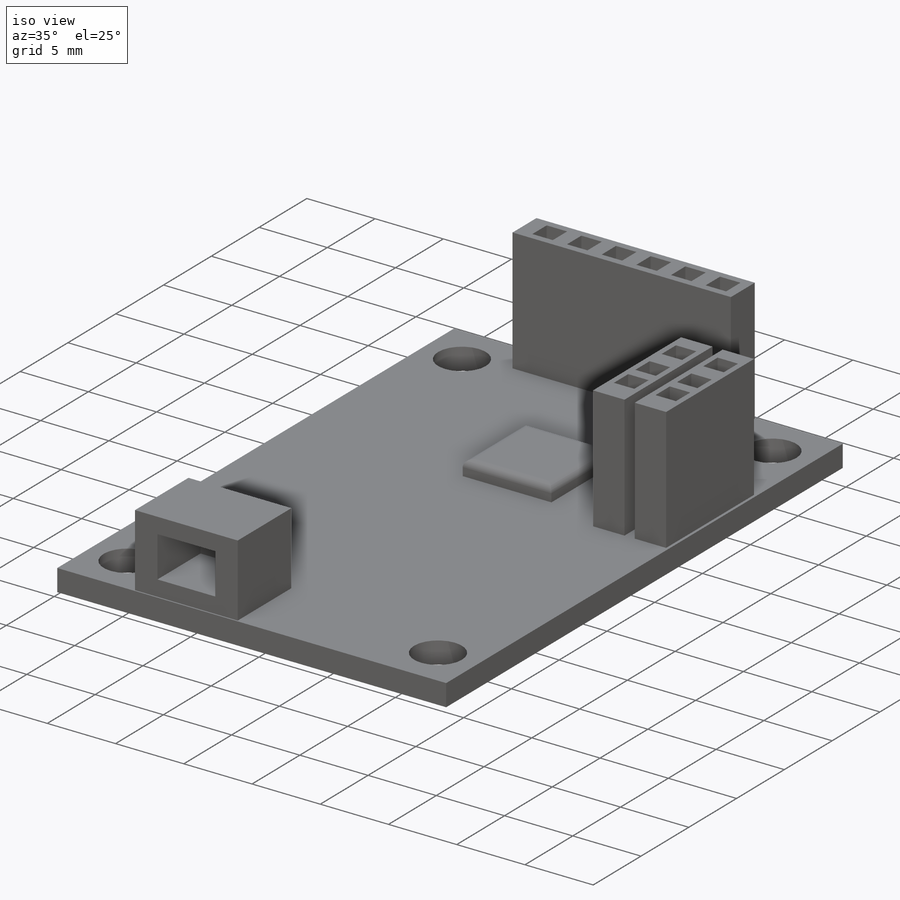
[diagram: iso view]
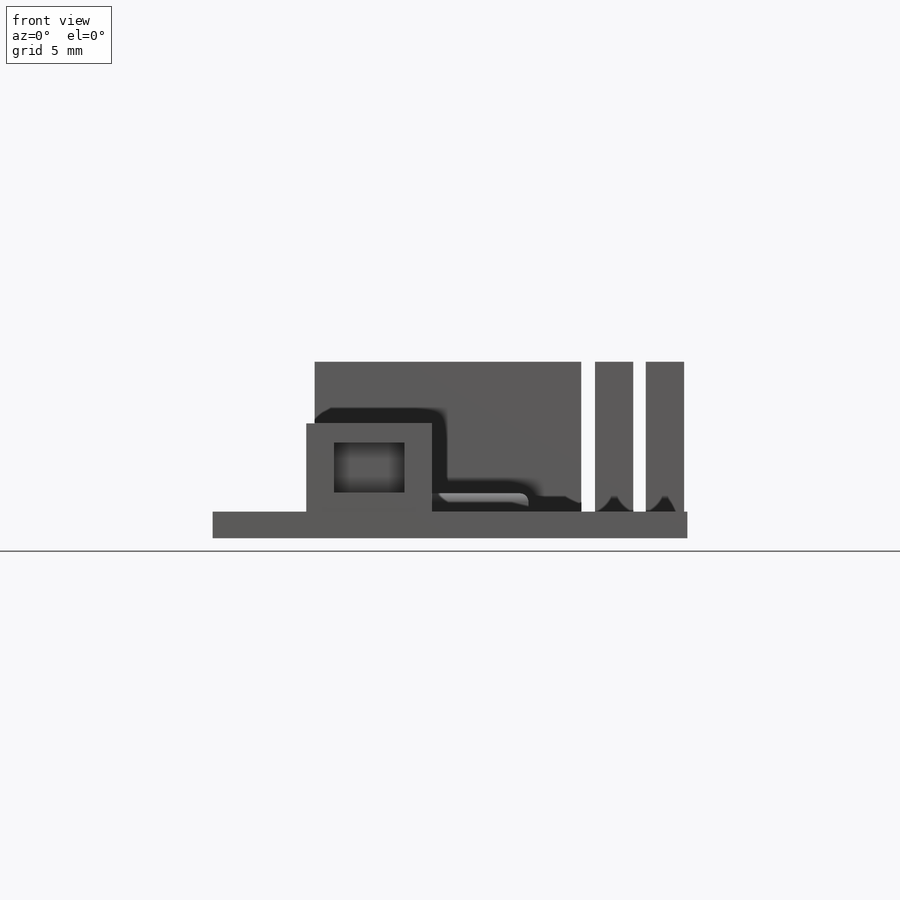
[diagram: front view]
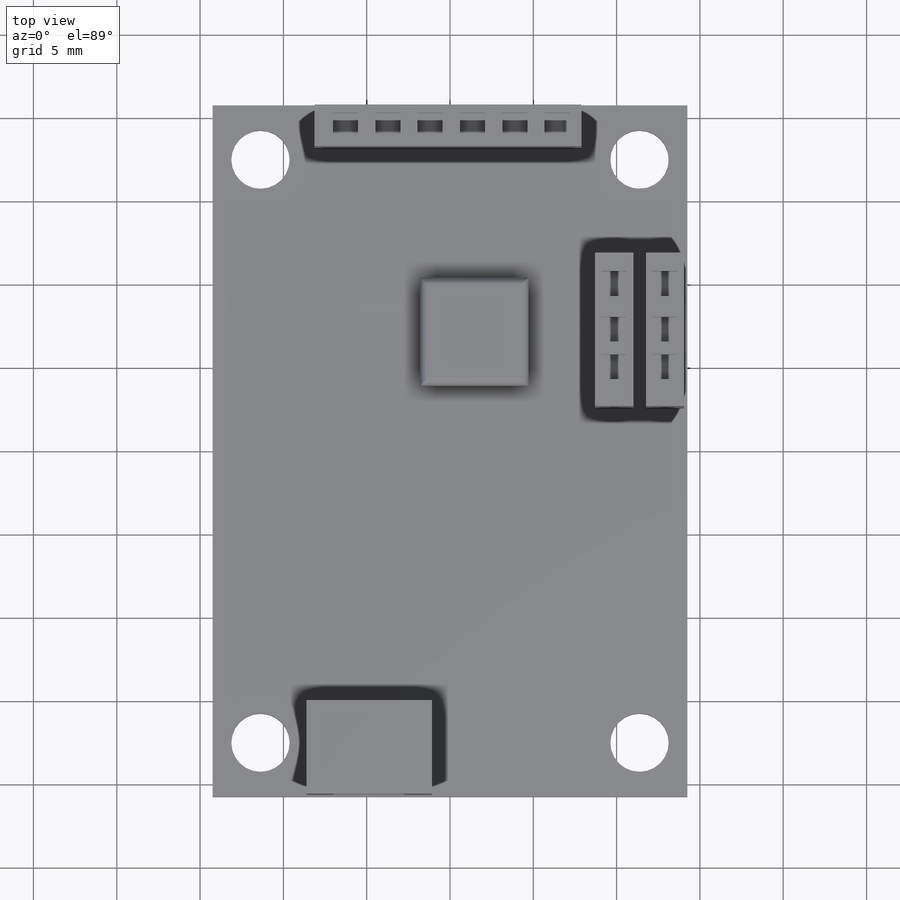
[diagram: top view]
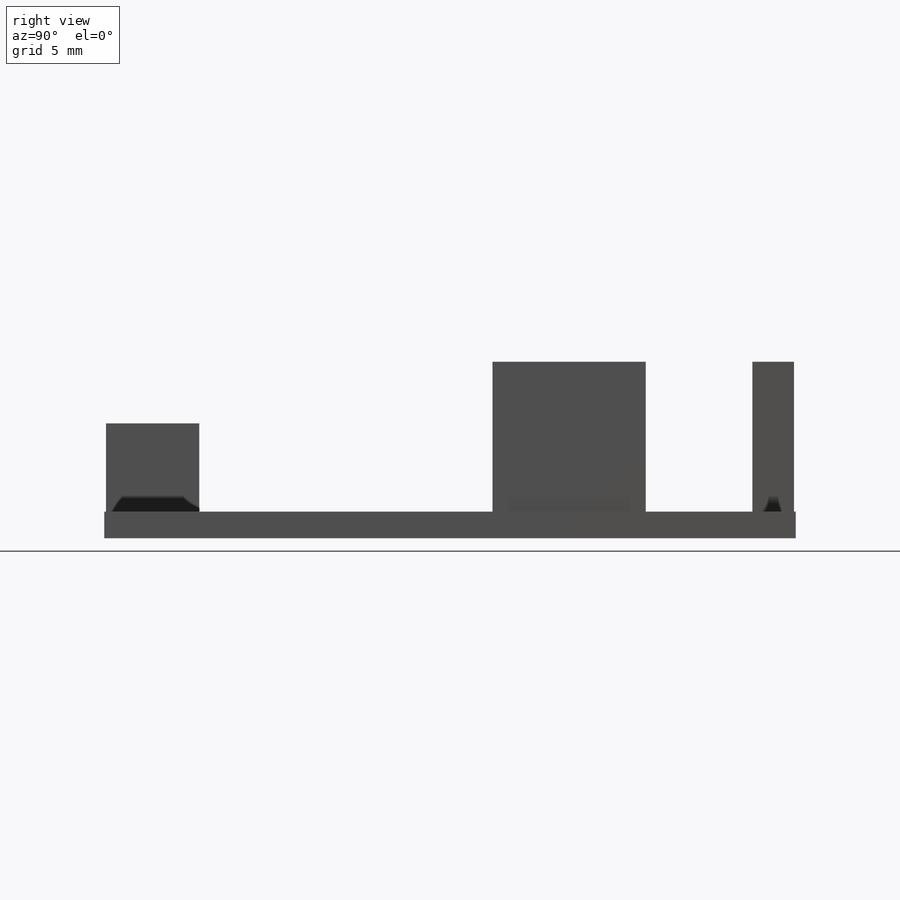
[diagram: right view]
SOLIDWORKS PART (.sldprt)
format: sldprt  version: not decoded by parser v0  size: 343,552 bytes
history: native  units: mm
features: sketch x6, extrude x4, cut_extrude x2, material x1, fillet x1 (+16 scaffold rows collapsed)
feature tree (30):
  scaffold x16  (default folders/planes/origin — collapsed)
  material  "Material <not specified>"
  sketch  "Sketch1"  dims[D3=3.5mm D1=28.5mm D2=41.5mm D4=11.375mm D5=17.5mm]
  extrude  "Boss-Extrude1"  Depth=1.6mm
  sketch  "Sketch2"  dims[D1=5.75mm D2=2.3mm D3=9.2mm D4=0.375mm D5=16.0mm D6=2.5mm D7=0.1mm D8=3.5mm]
  extrude  "Boss-Extrude2"  Depth=9mm
  sketch  "Sketch3"  dims[D1=1.5mm D2=1.5mm D5=1.5mm D6=1.5mm D7=0.7mm D3=2.0 D4=2.0 D8=6.0]
  cut_extrude  "Cut-Extrude1"  Depth=1mm
  sketch  "Sketch4"  dims[D1=6.5mm D2=6.5mm D3=4.0mm]
  extrude  "Boss-Extrude3"  Depth=1.1mm
  fillet  "Fillet1"  Radius=0.5mm
  sketch  "Sketch5"  dims[D1=0.1mm D2=7.53mm D3=2.75mm D4=5.6mm]
  extrude  "Boss-Extrude4"  Depth=5.3mm
  sketch  "Sketch6"  dims[D1=4.23mm D2=3.0mm]
  cut_extrude  "Cut-Extrude2"  Depth=4.5mm
decode coverage: 13 of 13 modeling features carry decoded parameters
note: suppression state not decoded; provenance and decode notes live in map.json
